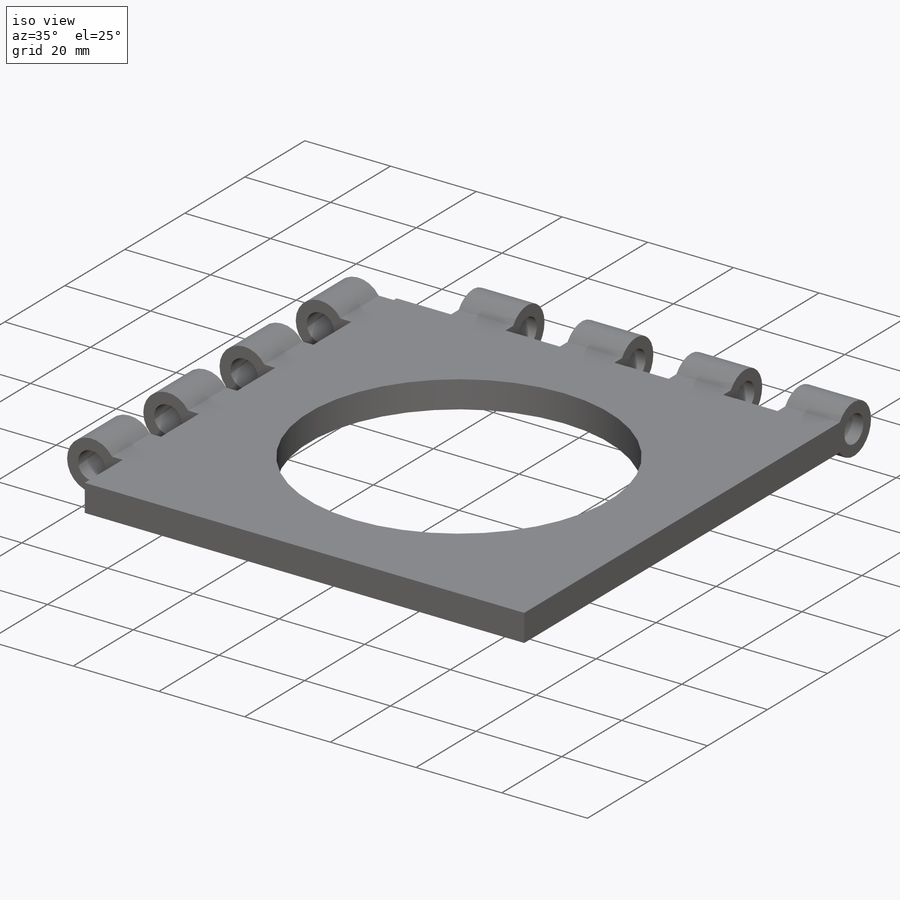
[diagram: iso view]
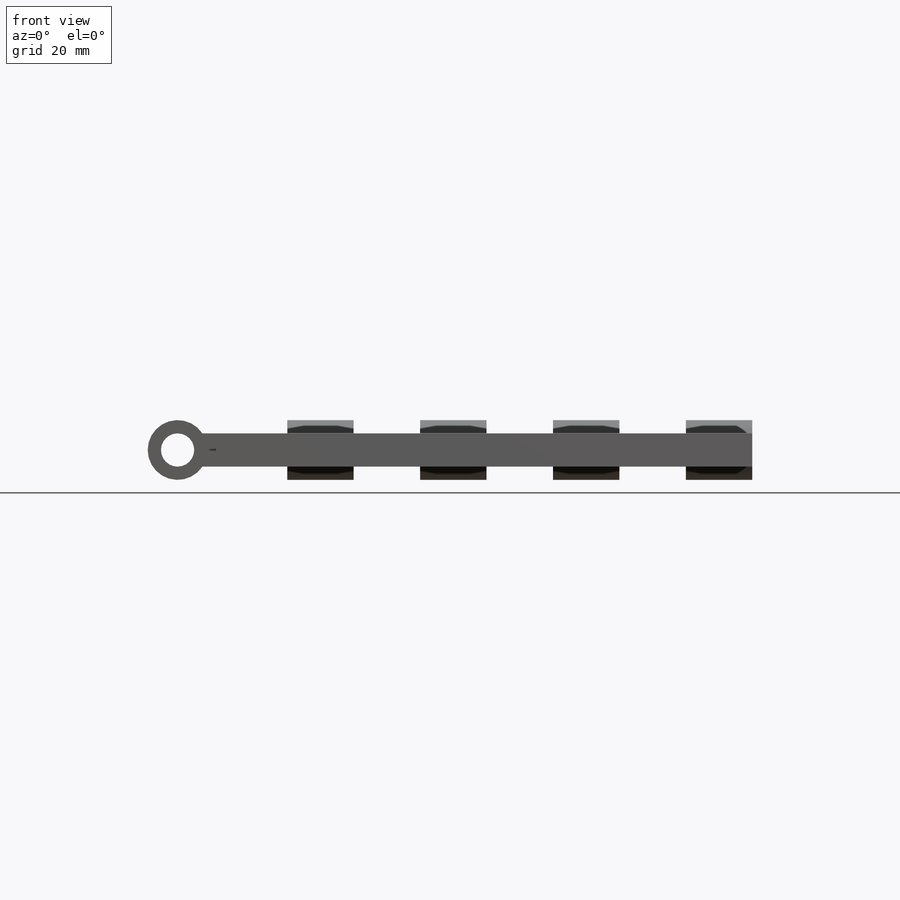
[diagram: front view]
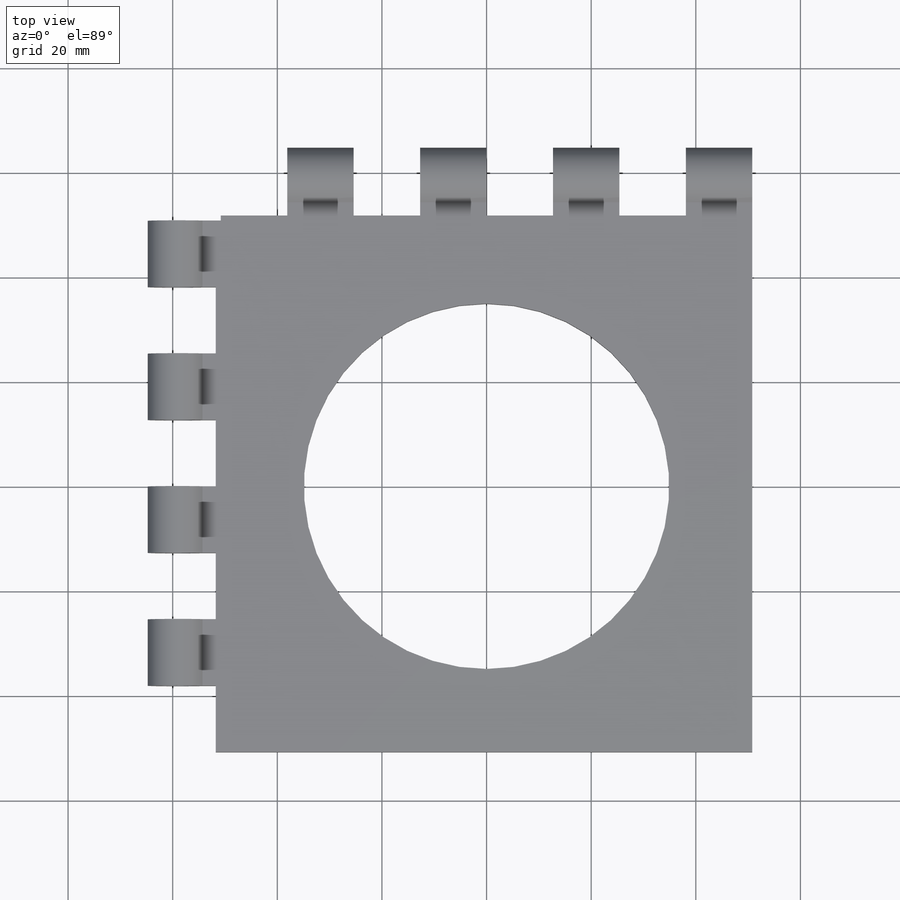
[diagram: top view]
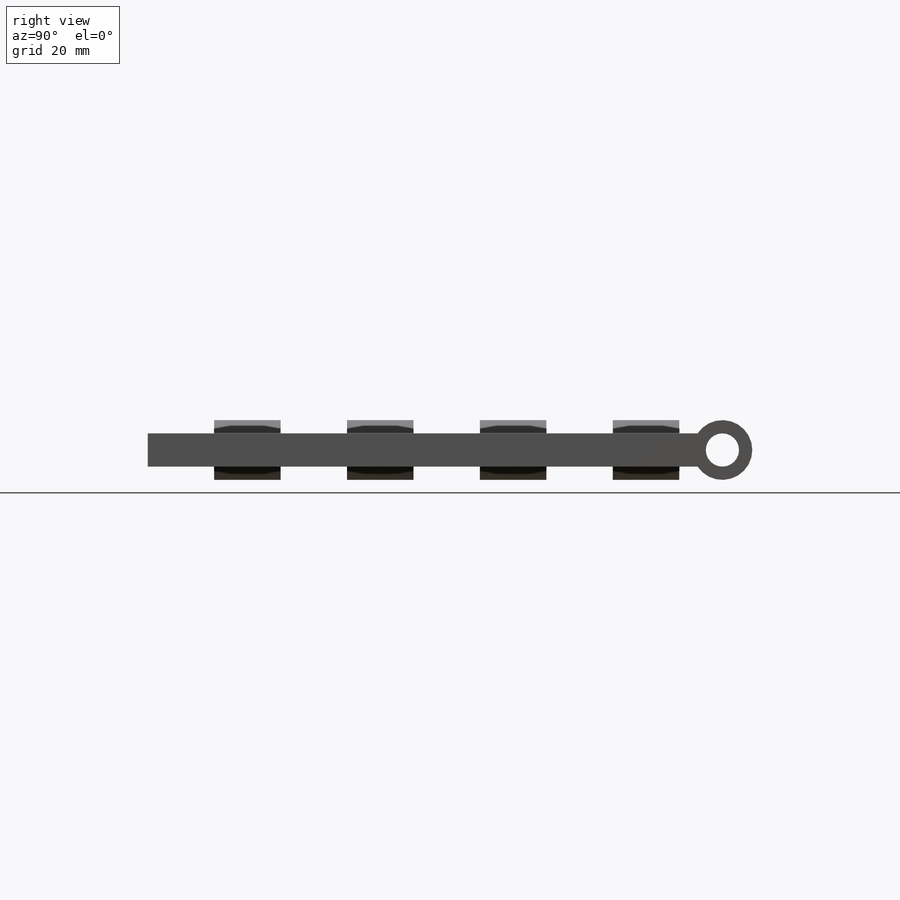
[diagram: right view]
SOLIDWORKS PART (.sldprt)
format: sldprt  version: not decoded by parser v0  size: 1,310,720 bytes
history: native  units: mm
features: sketch x13, extrude x7, cut_extrude x6, pattern_circular x2, material x1, plane x1, pattern_linear x1 (+14 scaffold rows collapsed; 3 parser-record rows omitted)
feature tree (48):
  scaffold x14  (default folders/planes/origin — collapsed)
  material  "Brass"
  plane  "Top Plane 2"  Offset=25.4mm
  sketch  "Sketch1"  dims[D1=101.6mm]
  extrude  "Base Extrude"  Depth=6.35mm
  sketch  "Sketch9"  dims[D1=69.85mm]
  cut_extrude  "Center Hole"  [1 undecoded]
  parser-record x3  (decoder bookkeeping rows leaked as tree rows — omitted from the tree; the rows remain in map.json)
  sketch  "Sketch2"  dims[c1.D1=~6.974618mm c1.D2=11.43mm c1.D3=11.43mm c2.D1=2.54mm c2.D3=53.34mm]
  extrude  "Left Hinge Base"  Depth=50.8mm
  cut_extrude  "Left Hinge Cut"  [1 undecoded]
  sketch  "Sketch2<3>"  dims[D1=50.8mm D2=50.8mm]
  sketch  "Sketch3"  dims[D1=0.0mm]
  extrude  "Left Hinge Extension"  [1 undecoded]
  sketch  "Sketch4"  dims[c1.D1=~9.115471mm c1.D2=11.43mm c2.D1=2.54mm c2.D3=53.34mm]
  extrude  "Back Hinge Base"  Depth=50.8mm
  cut_extrude  "Back Hinge Cut"  [1 undecoded]
  sketch  "Sketch4<3>"  dims[D1=50.8mm D2=50.8mm]
  sketch  "Sketch7"  dims[D1=0.0mm]
  extrude  "Back Hinge Extension"  [1 undecoded]
  sketch  "Sketch5"  dims[D1=11.43mm D3=53.34mm D2=2.54mm]
  extrude  "Right Hinge Base"  Depth=50.8mm
  cut_extrude  "Right Hinge Cut"  [1 undecoded]
  sketch  "Sketch5<3>"  dims[D1=50.8mm D2=50.8mm]
  sketch  "Sketch6"  dims[D1=0.0mm]
  extrude  "Right Hinge Extension"  [1 undecoded]
  sketch  "Sketch8"  dims[D1=12.7mm D2=2.54mm]
  cut_extrude  "Hinge Cut Left"  [1 undecoded]
  pattern_linear  "Hinge Cut Left LPattern"  Count1=4 Count2=1 Spacing1=25.4mm Spacing2=2.54mm
  pattern_circular  "Hinge Cut Back CirPattern"  Count=2 Angle=90deg
  pattern_circular  "CirPattern2"  Count=2 Angle=180deg
  sketch  "Sketch10"  dims[D1=25.4mm]
  cut_extrude  "Rod Cut"  [1 undecoded]
decode coverage: 20 of 29 modeling features carry decoded parameters
note: ~ marks probable driven/reference dimensions
note: 9 parameter values undecoded
summary: no parameter record found for 9 features
note: suppression state not decoded; provenance and decode notes live in map.json
